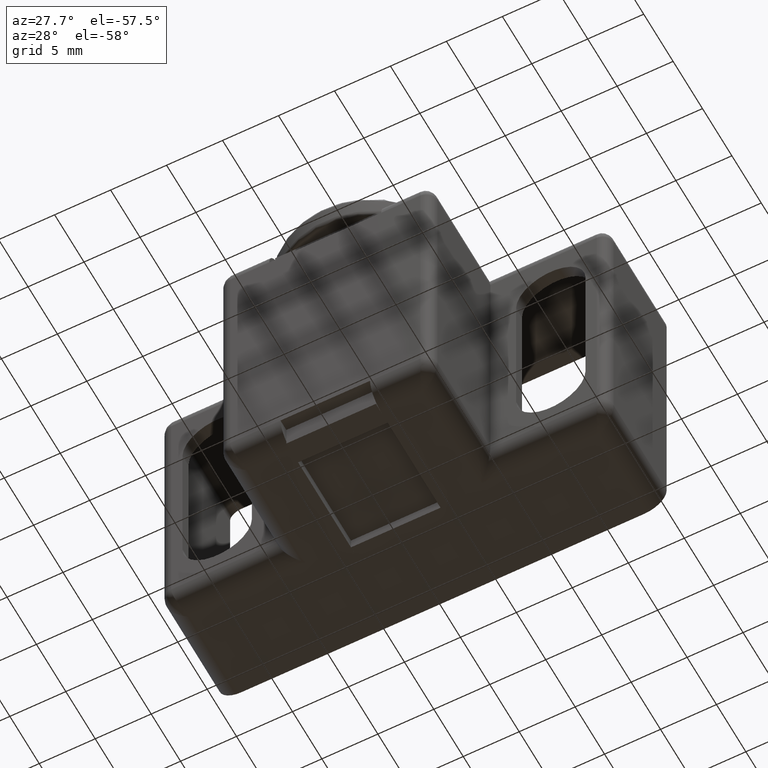
[diagram: clean part render]
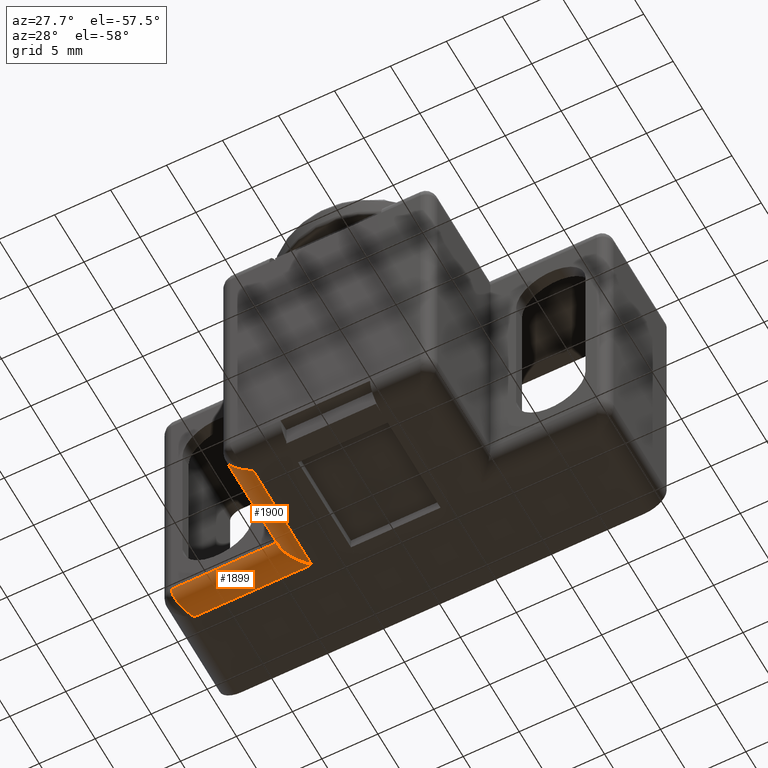
[diagram: same view with one multi-face feature highlighted, each face labeled with its STEP entity id]
A machine part, auxiliary view. The highlighted faces form ONE feature: a constant-radius fillet chain: 2 tangent blend faces with common blend radius 2 mm. The faces share edges in the B-rep.
Their STEP definitions:
[1] entity #1899 (Cylinder):
#35=ELLIPSE('',#2048,2.82842712474619,2.);
#67=CYLINDRICAL_SURFACE('',#2047,2.);
#187=FACE_OUTER_BOUND('',#308,.T.);
#308=EDGE_LOOP('',(#1379,#1380,#1381,#1382));
#410=B_SPLINE_CURVE_WITH_KNOTS('',3,(#3036,#3037,#3038,#3039,#3040,#3041,
#3042,#3043,#3044,#3045,#3046,#3047,#3048,#3049,#3050,#3051,#3052,#3053,
#3054),.UNSPECIFIED.,.F.,.F.,(4,3,3,3,3,3,4),(0.,0.460935480863024,0.867480277446662,
1.22291760119023,1.71995914177703,2.33789199595493,3.32866126072487),
 .UNSPECIFIED.);
#471=LINE('',#3035,#667);
#472=LINE('',#3056,#668);
#667=VECTOR('',#2329,9.49999789933451);
#668=VECTOR('',#2330,10.4999976689581);
#873=VERTEX_POINT('',#3011);
#874=VERTEX_POINT('',#3033);
#875=VERTEX_POINT('',#3034);
#876=VERTEX_POINT('',#3055);
#1065=EDGE_CURVE('',#874,#875,#471,.T.);
#1066=EDGE_CURVE('',#875,#873,#410,.T.);
#1067=EDGE_CURVE('',#876,#873,#472,.T.);
#1068=EDGE_CURVE('',#874,#876,#35,.T.);
#1379=ORIENTED_EDGE('',*,*,#1065,.T.);
#1380=ORIENTED_EDGE('',*,*,#1066,.T.);
#1381=ORIENTED_EDGE('',*,*,#1067,.F.);
#1382=ORIENTED_EDGE('',*,*,#1068,.F.);
#1899=ADVANCED_FACE('',(#187),#67,.T.);
#2047=AXIS2_PLACEMENT_3D('',#3032,#2327,#2328);
#2048=AXIS2_PLACEMENT_3D('',#3057,#2331,#2332);
#2327=DIRECTION('center_axis',(1.,0.,0.));
#2328=DIRECTION('ref_axis',(0.,0.,1.));
#2329=DIRECTION('',(-1.,0.,0.));
#2330=DIRECTION('',(-1.,0.,0.));
#2331=DIRECTION('center_axis',(0.707106781186547,0.,0.707106781186548));
#2332=DIRECTION('ref_axis',(-0.707106781186548,0.,0.707106781186547));
#3011=CARTESIAN_POINT('',(-36.99999111984,-13.999996891944,7.99999777995991));
#3032=CARTESIAN_POINT('Origin',(-26.4999934508819,-11.999996891944,7.99999777995991));
#3033=CARTESIAN_POINT('',(-28.4999934508819,-11.999996891944,9.99999777995991));
#3034=CARTESIAN_POINT('',(-37.9999913502164,-11.999996891944,9.99999777995991));
#3035=CARTESIAN_POINT('',(-28.4999934508819,-11.999996891944,9.99999777995991));
#3036=CARTESIAN_POINT('Ctrl Pts',(-37.9999913582586,-11.999996891944,9.99999777995991));
#3037=CARTESIAN_POINT('Ctrl Pts',(-37.9999913582586,-12.1763115497534,9.99999777995991));
#3038=CARTESIAN_POINT('Ctrl Pts',(-37.9879914041217,-12.3523756199215,9.97609793470974));
#3039=CARTESIAN_POINT('Ctrl Pts',(-37.9659648650887,-12.5172788979302,9.93194480984527));
#3040=CARTESIAN_POINT('Ctrl Pts',(-37.9465374718799,-12.6627234826875,9.89300178221601));
#3041=CARTESIAN_POINT('Ctrl Pts',(-37.9193101690593,-12.7995782160714,9.83864204346233));
#3042=CARTESIAN_POINT('Ctrl Pts',(-37.8866635607596,-12.9247938586282,9.77334223900098));
#3043=CARTESIAN_POINT('Ctrl Pts',(-37.8581210159261,-13.0342684190093,9.71625138964377));
#3044=CARTESIAN_POINT('Ctrl Pts',(-37.8254360630231,-13.1348830707227,9.65089684406076));
#3045=CARTESIAN_POINT('Ctrl Pts',(-37.7899026297346,-13.2264390700564,9.5798204230901));
#3046=CARTESIAN_POINT('Ctrl Pts',(-37.7402128778592,-13.3544704610187,9.48042755852943));
#3047=CARTESIAN_POINT('Ctrl Pts',(-37.684952903445,-13.4648494530006,9.36992594601454));
#3048=CARTESIAN_POINT('Ctrl Pts',(-37.6265044705587,-13.5588185091136,9.25302418265255));
#3049=CARTESIAN_POINT('Ctrl Pts',(-37.5538401075096,-13.6756428835506,9.1076893677648));
#3050=CARTESIAN_POINT('Ctrl Pts',(-37.4762476620223,-13.767200239118,8.95253047116978));
#3051=CARTESIAN_POINT('Ctrl Pts',(-37.3963157579628,-13.8362178548078,8.79264686722322));
#3052=CARTESIAN_POINT('Ctrl Pts',(-37.2681560828762,-13.9468779886572,8.53629577719802));
#3053=CARTESIAN_POINT('Ctrl Pts',(-37.1339822081878,-13.999996891944,8.2679798927637));
#3054=CARTESIAN_POINT('Ctrl Pts',(-36.99999111984,-13.999996891944,7.99999777995991));
#3055=CARTESIAN_POINT('',(-26.4999934508819,-13.999996891944,7.99999777995991));
#3056=CARTESIAN_POINT('',(-26.4999934508819,-13.999996891944,7.99999777995991));
#3057=CARTESIAN_POINT('Origin',(-26.4999934508819,-11.999996891944,7.99999777995991));
[2] entity #1900 (Cylinder):
#35=ELLIPSE('',#2048,2.82842712474619,2.);
#68=CYLINDRICAL_SURFACE('',#2049,2.);
#188=FACE_OUTER_BOUND('',#309,.T.);
#309=EDGE_LOOP('',(#1383,#1384,#1385,#1386));
#411=B_SPLINE_CURVE_WITH_KNOTS('',3,(#3062,#3063,#3064,#3065,#3066,#3067,
#3068,#3069,#3070,#3071,#3072,#3073,#3074,#3075,#3076,#3077,#3078,#3079,
#3080),.UNSPECIFIED.,.F.,.F.,(4,3,3,3,3,3,4),(0.,0.460935480862974,0.867480277446561,
1.22291760119014,1.71995914177696,2.33789199595482,3.32866126072487),
 .UNSPECIFIED.);
#473=LINE('',#3060,#669);
#474=LINE('',#3061,#670);
#669=VECTOR('',#2335,8.99999801033677);
#670=VECTOR('',#2336,9.99999777996033);
#849=VERTEX_POINT('',#2871);
#874=VERTEX_POINT('',#3033);
#876=VERTEX_POINT('',#3055);
#877=VERTEX_POINT('',#3059);
#1068=EDGE_CURVE('',#874,#876,#35,.T.);
#1069=EDGE_CURVE('',#877,#874,#473,.T.);
#1070=EDGE_CURVE('',#849,#876,#474,.T.);
#1071=EDGE_CURVE('',#877,#849,#411,.T.);
#1383=ORIENTED_EDGE('',*,*,#1069,.T.);
#1384=ORIENTED_EDGE('',*,*,#1068,.T.);
#1385=ORIENTED_EDGE('',*,*,#1070,.F.);
#1386=ORIENTED_EDGE('',*,*,#1071,.F.);
#1900=ADVANCED_FACE('',(#188),#68,.T.);
#2048=AXIS2_PLACEMENT_3D('',#3057,#2331,#2332);
#2049=AXIS2_PLACEMENT_3D('',#3058,#2333,#2334);
#2331=DIRECTION('center_axis',(0.707106781186547,0.,0.707106781186548));
#2332=DIRECTION('ref_axis',(-0.707106781186548,0.,0.707106781186547));
#2333=DIRECTION('center_axis',(0.,0.,1.));
#2334=DIRECTION('ref_axis',(-1.,0.,0.));
#2335=DIRECTION('',(0.,0.,-1.));
#2336=DIRECTION('',(0.,0.,-1.));
#2871=CARTESIAN_POINT('',(-26.4999934508819,-13.999996891944,17.9999955599202));
#3033=CARTESIAN_POINT('',(-28.4999934508819,-11.999996891944,9.99999777995991));
#3055=CARTESIAN_POINT('',(-26.4999934508819,-13.999996891944,7.99999777995991));
#3057=CARTESIAN_POINT('Origin',(-26.4999934508819,-11.999996891944,7.99999777995991));
#3058=CARTESIAN_POINT('Origin',(-26.4999934508819,-11.999996891944,20.9999957819242));
#3059=CARTESIAN_POINT('',(-28.4999934508819,-11.999996891944,18.9999957902967));
#3060=CARTESIAN_POINT('',(-28.4999934508819,-11.999996891944,18.9999957819242));
#3061=CARTESIAN_POINT('',(-26.4999934508819,-13.999996891944,17.9999955599202));
#3062=CARTESIAN_POINT('Ctrl Pts',(-28.4999934508819,-11.999996891944,18.9999957983388));
#3063=CARTESIAN_POINT('Ctrl Pts',(-28.4999934508819,-12.1763115497534,18.9999957983388));
#3064=CARTESIAN_POINT('Ctrl Pts',(-28.4760936056317,-12.3523756199214,18.987995844202));
#3065=CARTESIAN_POINT('Ctrl Pts',(-28.4319404807673,-12.5172788979302,18.965969305169));
#3066=CARTESIAN_POINT('Ctrl Pts',(-28.392997453138,-12.6627234826875,18.9465419119602));
#3067=CARTESIAN_POINT('Ctrl Pts',(-28.3386377143844,-12.7995782160713,18.9193146091396));
#3068=CARTESIAN_POINT('Ctrl Pts',(-28.273337909923,-12.9247938586281,18.8866680008399));
#3069=CARTESIAN_POINT('Ctrl Pts',(-28.2162470605658,-13.0342684190093,18.8581254560064));
#3070=CARTESIAN_POINT('Ctrl Pts',(-28.1508925149828,-13.1348830707226,18.8254405031034));
#3071=CARTESIAN_POINT('Ctrl Pts',(-28.0798160940121,-13.2264390700563,18.7899070698149));
#3072=CARTESIAN_POINT('Ctrl Pts',(-27.9804232294515,-13.3544704610186,18.7402173179395));
#3073=CARTESIAN_POINT('Ctrl Pts',(-27.8699216169366,-13.4648494530005,18.6849573435253));
#3074=CARTESIAN_POINT('Ctrl Pts',(-27.7530198535746,-13.5588185091135,18.626508910639));
#3075=CARTESIAN_POINT('Ctrl Pts',(-27.6076850386869,-13.6756428835506,18.5538445475899));
#3076=CARTESIAN_POINT('Ctrl Pts',(-27.4525261420919,-13.7672002391179,18.4762521021026));
#3077=CARTESIAN_POINT('Ctrl Pts',(-27.2926425381453,-13.8362178548078,18.3963201980431));
#3078=CARTESIAN_POINT('Ctrl Pts',(-27.0362914481201,-13.9468779886571,18.2681605229565));
#3079=CARTESIAN_POINT('Ctrl Pts',(-26.7679755636857,-13.999996891944,18.1339866482681));
#3080=CARTESIAN_POINT('Ctrl Pts',(-26.4999934508819,-13.999996891944,17.9999955599202));